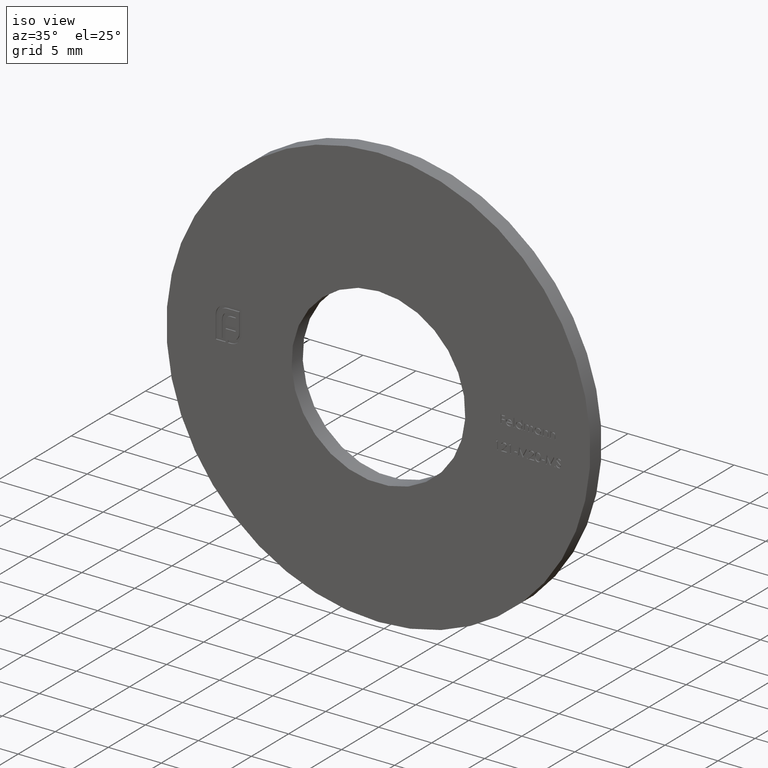
[diagram: clean part render]
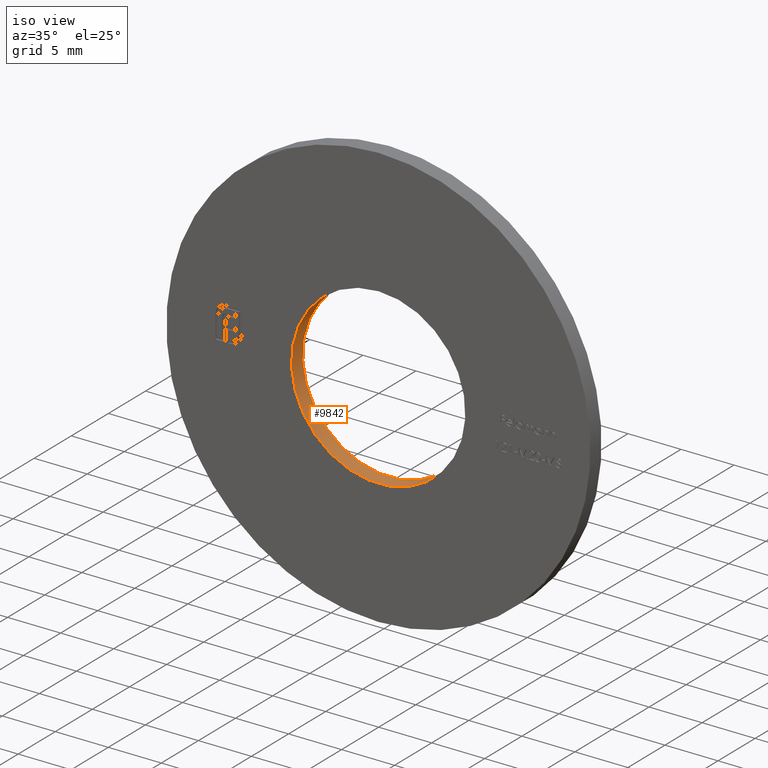
[diagram: same view with one face highlighted and labeled with its STEP entity id]
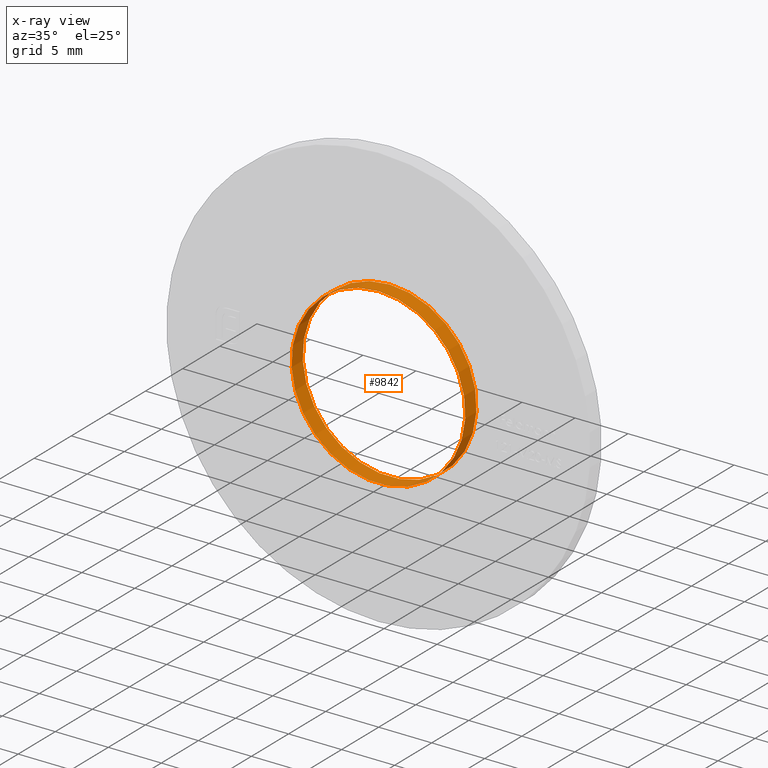
[diagram: x-ray of the same camera — body ghosted, the highlighted face saturated]
A machine part, iso view. The second image highlights one B-rep face of the part: STEP entity #9842.
The next image is the same camera in x-ray: the body ghosted, the highlighted face saturated — about 0% of this face is hidden behind the body in this view.
In plain terms, the highlighted cylindrical surface (bore or boss wall) has radius 8.2 mm, axis along (-0, -1, -0).
Its self-contained STEP definition (entity closure, byte-faithful):
#429 = AXIS2_PLACEMENT_3D ( 'NONE', #4892, #13000, #6951 ) ;
#590 = EDGE_CURVE ( 'NONE', #3524, #3524, #8164, .T. ) ;
#842 = CIRCLE ( 'NONE', #429, 8.199999999999999289 ) ;
#1791 = EDGE_LOOP ( 'NONE', ( #6688 ) ) ;
#2449 = CARTESIAN_POINT ( 'NONE',  ( 0.000000000000000000, 0.7500000000000000000, 0.000000000000000000 ) ) ;
#2460 = EDGE_LOOP ( 'NONE', ( #10773 ) ) ;
#3524 = VERTEX_POINT ( 'NONE', #8254 ) ;
#3691 = CARTESIAN_POINT ( 'NONE',  ( 0.000000000000000000, 0.7500000000000000000, 0.000000000000000000 ) ) ;
#4457 = EDGE_CURVE ( 'NONE', #6060, #6060, #842, .T. ) ;
#4757 = DIRECTION ( 'NONE',  ( 0.000000000000000000, 1.000000000000000000, 0.000000000000000000 ) ) ;
#4799 = DIRECTION ( 'NONE',  ( -0.000000000000000000, -1.000000000000000000, -0.000000000000000000 ) ) ;
#4892 = CARTESIAN_POINT ( 'NONE',  ( 0.000000000000000000, -0.7500000000000000000, 0.000000000000000000 ) ) ;
#5002 = FACE_OUTER_BOUND ( 'NONE', #1791, .T. ) ;
#5041 = DIRECTION ( 'NONE',  ( 0.000000000000000000, 0.000000000000000000, 1.000000000000000000 ) ) ;
#6060 = VERTEX_POINT ( 'NONE', #6286 ) ;
#6286 = CARTESIAN_POINT ( 'NONE',  ( 0.000000000000000000, -0.7500000000000000000, 8.199999999999999289 ) ) ;
#6688 = ORIENTED_EDGE ( 'NONE', *, *, #590, .T. ) ;
#6951 = DIRECTION ( 'NONE',  ( 0.000000000000000000, 0.000000000000000000, 1.000000000000000000 ) ) ;
#7354 = FACE_OUTER_BOUND ( 'NONE', #2460, .T. ) ;
#7826 = AXIS2_PLACEMENT_3D ( 'NONE', #2449, #4799, #10728 ) ;
#8164 = CIRCLE ( 'NONE', #8386, 8.199999999999999289 ) ;
#8254 = CARTESIAN_POINT ( 'NONE',  ( 0.000000000000000000, 0.7500000000000000000, 8.199999999999999289 ) ) ;
#8386 = AXIS2_PLACEMENT_3D ( 'NONE', #3691, #4757, #5041 ) ;
#9091 = CYLINDRICAL_SURFACE ( 'NONE', #7826, 8.199999999999999289 ) ;
#9842 = ADVANCED_FACE ( 'NONE', ( #5002, #7354 ), #9091, .F. ) ;
#10728 = DIRECTION ( 'NONE',  ( 0.000000000000000000, 0.000000000000000000, -1.000000000000000000 ) ) ;
#10773 = ORIENTED_EDGE ( 'NONE', *, *, #4457, .F. ) ;
#13000 = DIRECTION ( 'NONE',  ( 0.000000000000000000, 1.000000000000000000, 0.000000000000000000 ) ) ;